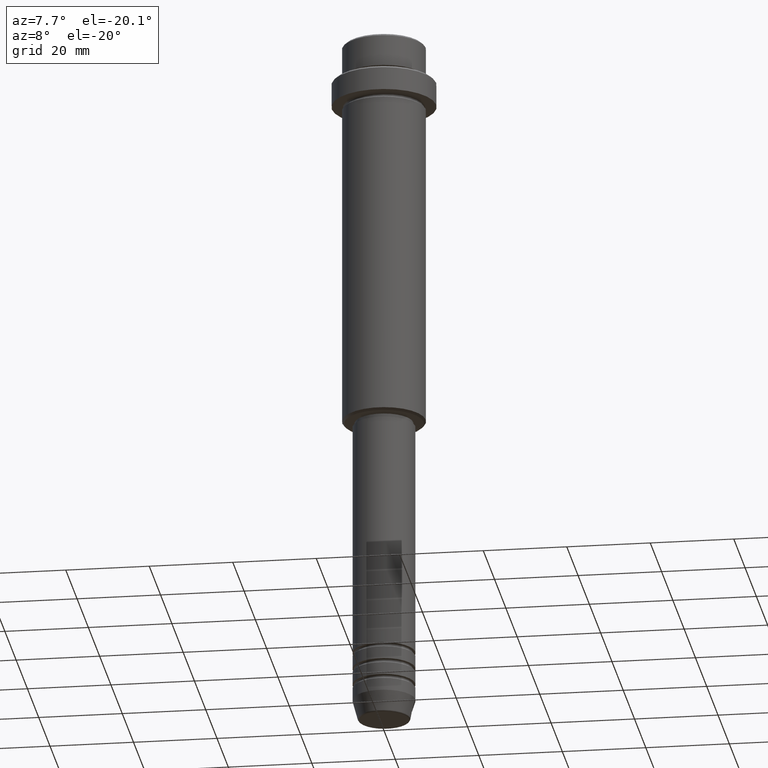
[diagram: clean part render]
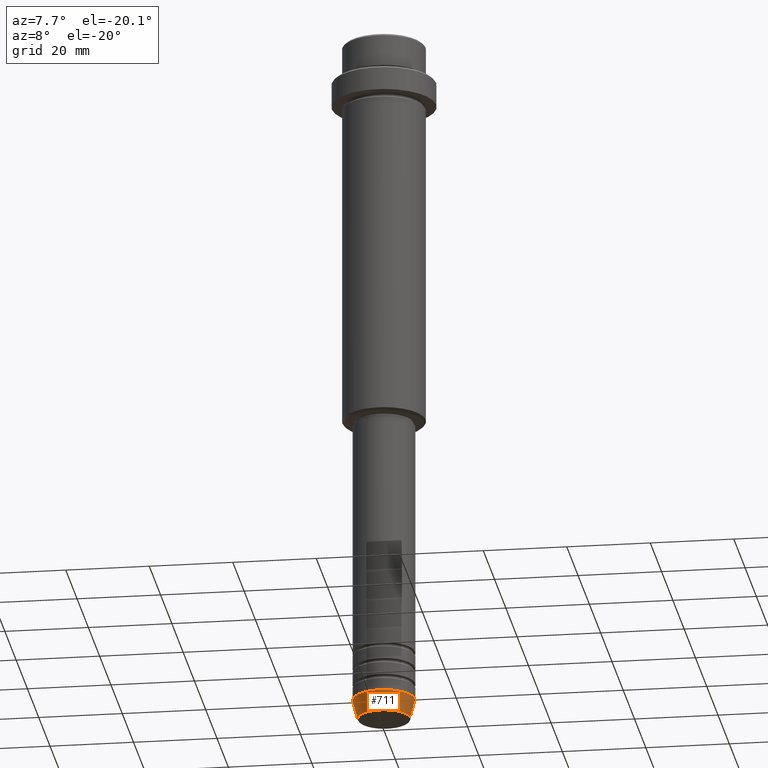
[diagram: same view with one face highlighted and labeled with its STEP entity id]
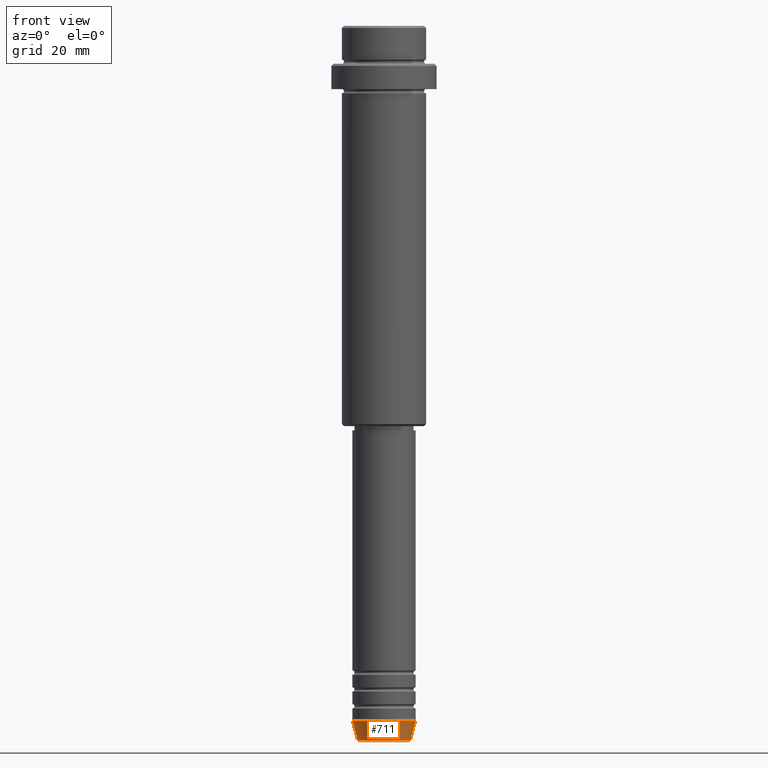
[diagram: same view with one face highlighted and labeled with its STEP entity id]
A machine part, auxiliary view. The second image highlights one B-rep face of the part: STEP entity #711.
A second angle (front view) of the same face is appended — the face is thin or edge-on in the first view.
In plain terms, the highlighted conical surface has half-angle 15 deg.
Its self-contained STEP definition (entity closure, byte-faithful):
#71 = VERTEX_POINT ( 'NONE', #895 ) ;
#75 = DIRECTION ( 'NONE',  ( -0.000000000000000000, -0.000000000000000000, 1.000000000000000000 ) ) ;
#117 = DIRECTION ( 'NONE',  ( -0.2588190451025213501, 3.169619151431772337E-17, 0.9659258262890680902 ) ) ;
#131 = VECTOR ( 'NONE', #117, 1000.000000000000000 ) ;
#154 = CIRCLE ( 'NONE', #507, 6.259553456999438659 ) ;
#169 = EDGE_CURVE ( 'NONE', #71, #1259, #154, .T. ) ;
#173 = CARTESIAN_POINT ( 'NONE',  ( 0.000000000000000000, 0.000000000000000000, -164.9999999999999716 ) ) ;
#270 = CONICAL_SURFACE ( 'NONE', #741, 7.500000000000000000, 0.2617993877991500740 ) ;
#293 = ORIENTED_EDGE ( 'NONE', *, *, #571, .F. ) ;
#305 = DIRECTION ( 'NONE',  ( -0.000000000000000000, -0.000000000000000000, 1.000000000000000000 ) ) ;
#310 = DIRECTION ( 'NONE',  ( 1.000000000000000000, 0.000000000000000000, 0.000000000000000000 ) ) ;
#373 = VERTEX_POINT ( 'NONE', #806 ) ;
#507 = AXIS2_PLACEMENT_3D ( 'NONE', #832, #305, #610 ) ;
#509 = AXIS2_PLACEMENT_3D ( 'NONE', #173, #1258, #1118 ) ;
#515 = CARTESIAN_POINT ( 'NONE',  ( 6.259553456999438659, 0.000000000000000000, -169.6294095225512422 ) ) ;
#525 = LINE ( 'NONE', #1402, #1290 ) ;
#571 = EDGE_CURVE ( 'NONE', #1119, #373, #644, .T. ) ;
#610 = DIRECTION ( 'NONE',  ( 1.000000000000000000, 0.000000000000000000, 0.000000000000000000 ) ) ;
#644 = CIRCLE ( 'NONE', #509, 7.500000000000000000 ) ;
#702 = ORIENTED_EDGE ( 'NONE', *, *, #1190, .T. ) ;
#711 = ADVANCED_FACE ( 'NONE', ( #973 ), #270, .T. ) ;
#741 = AXIS2_PLACEMENT_3D ( 'NONE', #1333, #75, #310 ) ;
#780 = ORIENTED_EDGE ( 'NONE', *, *, #169, .T. ) ;
#806 = CARTESIAN_POINT ( 'NONE',  ( 7.500000000000000000, 0.000000000000000000, -164.9999999999999716 ) ) ;
#832 = CARTESIAN_POINT ( 'NONE',  ( 0.000000000000000000, 0.000000000000000000, -169.6294095225512422 ) ) ;
#886 = CARTESIAN_POINT ( 'NONE',  ( -7.500000000000000000, 9.184850993605147944E-16, -164.9999999999999716 ) ) ;
#895 = CARTESIAN_POINT ( 'NONE',  ( -6.259553456999438659, 8.425296549405629486E-16, -169.6294095225512422 ) ) ;
#927 = ORIENTED_EDGE ( 'NONE', *, *, #988, .F. ) ;
#939 = CARTESIAN_POINT ( 'NONE',  ( -7.500000000000000000, 9.184850993605147944E-16, -164.9999999999999716 ) ) ;
#973 = FACE_OUTER_BOUND ( 'NONE', #1358, .T. ) ;
#988 = EDGE_CURVE ( 'NONE', #71, #1119, #1334, .T. ) ;
#1118 = DIRECTION ( 'NONE',  ( 1.000000000000000000, 0.000000000000000000, 0.000000000000000000 ) ) ;
#1119 = VERTEX_POINT ( 'NONE', #939 ) ;
#1168 = DIRECTION ( 'NONE',  ( 0.2588190451025213501, 0.000000000000000000, 0.9659258262890680902 ) ) ;
#1190 = EDGE_CURVE ( 'NONE', #1259, #373, #525, .T. ) ;
#1258 = DIRECTION ( 'NONE',  ( -0.000000000000000000, -0.000000000000000000, 1.000000000000000000 ) ) ;
#1259 = VERTEX_POINT ( 'NONE', #515 ) ;
#1290 = VECTOR ( 'NONE', #1168, 1000.000000000000000 ) ;
#1333 = CARTESIAN_POINT ( 'NONE',  ( 0.000000000000000000, 0.000000000000000000, -164.9999999999999716 ) ) ;
#1334 = LINE ( 'NONE', #886, #131 ) ;
#1358 = EDGE_LOOP ( 'NONE', ( #927, #780, #702, #293 ) ) ;
#1402 = CARTESIAN_POINT ( 'NONE',  ( 7.500000000000000000, 0.000000000000000000, -164.9999999999999716 ) ) ;